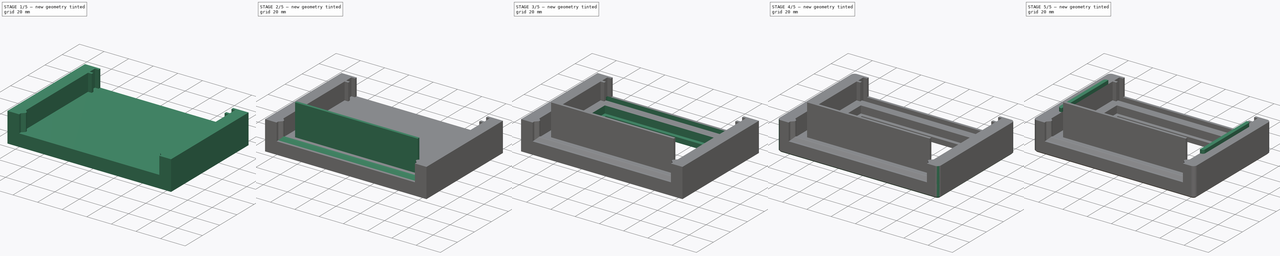
[diagram: build sequence overview — one tinted view per stage of 5, left to right]
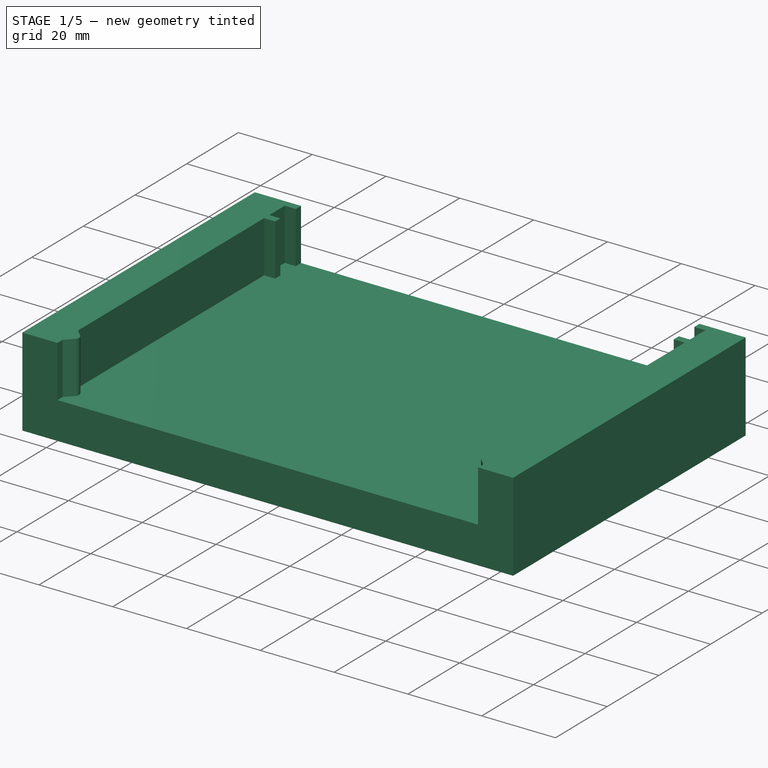
[diagram: stage 1 of 5 — iso view after this stage's code; geometry added in this stage tinted green]
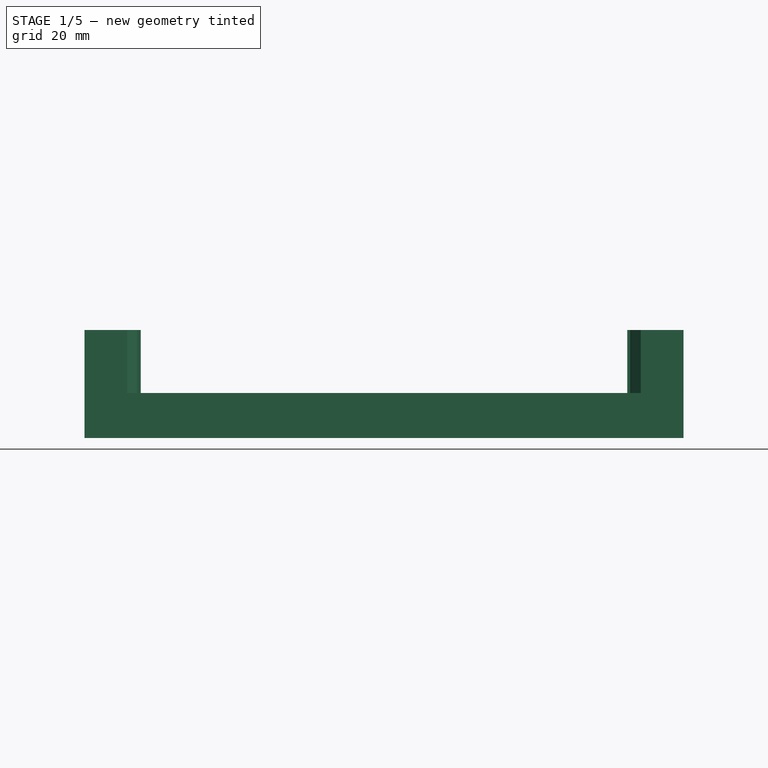
[diagram: stage 1 of 5 — front view after this stage's code; geometry added in this stage tinted green]
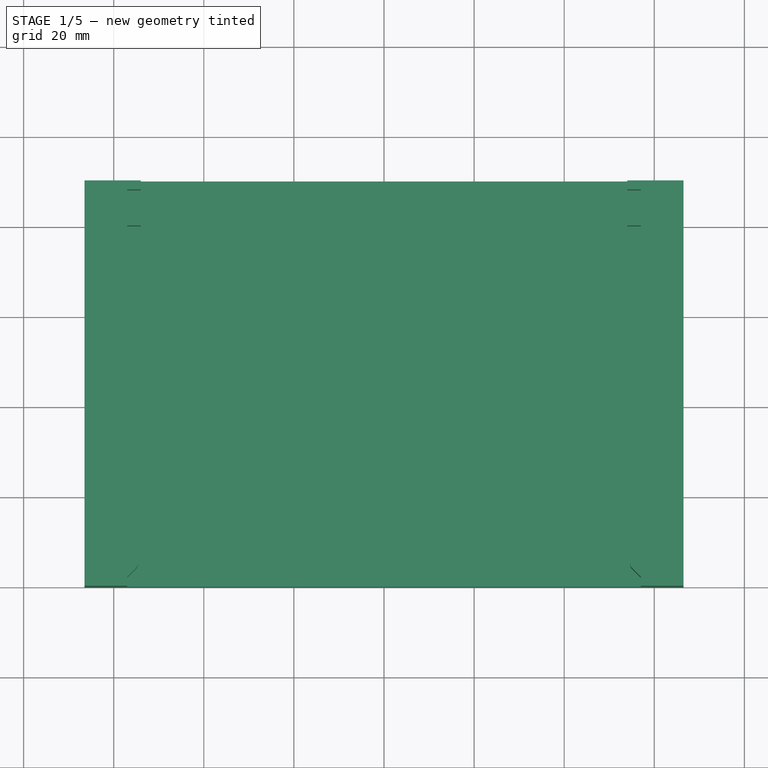
[diagram: stage 1 of 5 — top view after this stage's code; geometry added in this stage tinted green]
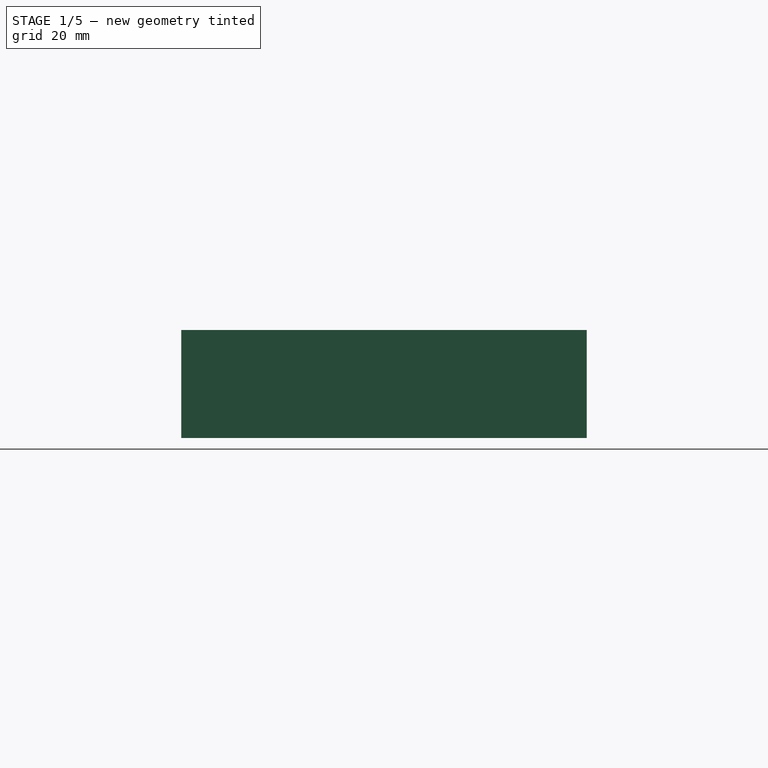
[diagram: stage 1 of 5 — right view after this stage's code; geometry added in this stage tinted green]
FCSTD DOCUMENT  (FreeCAD 0.17R13541 (Git))
Label: BikeBase4
License: All rights reserved
LicenseURL: http://en.wikipedia.org/wiki/All_rights_reserved
objects: Sketcher::SketchObject×9, PartDesign::Pad×6, PartDesign::Fillet×4, PartDesign::Pocket×3, PartDesign::Mirrored×1, PartDesign::LinearPattern×1, PartDesign::Chamfer×1, PartDesign::Body×1
note: 35 computed .brp shape members not serialized (recipe doc carries the construction recipe); baked Part::Feature solids carry a one-line shape summary decoded from their .brp

FEATURE [Sketcher::SketchObject] Sketch
  MapMode = 5
  Support = -> [XY_Plane]
  sketch-geometry (4):
    g0: LineSegment StartX=-66.5 StartY=-40 StartZ=0 EndX=66.5 EndY=-40 EndZ=0
    g1: LineSegment StartX=66.5 StartY=-40 StartZ=0 EndX=66.5 EndY=50 EndZ=0
    g2: LineSegment StartX=66.5 StartY=50 StartZ=0 EndX=-66.5 EndY=50 EndZ=0
    g3: LineSegment StartX=-66.5 StartY=50 StartZ=0 EndX=-66.5 EndY=-40 EndZ=0
  constraints (12):
    c: Coincident(g0,g1)
    c: Coincident(g1,g2)
    c: Coincident(g2,g3)
    c: Coincident(g3,g0)
    c: Horizontal(g0)
    c: Horizontal(g2)
    c: Vertical(g1)
    c: Vertical(g3)
    c: DistanceX(g0,g0) = 133
    c: DistanceX(g-1,g0) = 66.5
    c: DistanceY(g0,g-1) = 40
    c: DistanceY(g-1,g1) = 50
FEATURE [PartDesign::Pad] Pad
  Length = 10
  Length2 = 100
  Profile = -> Sketch
  Type = 0
FEATURE [Sketcher::SketchObject] Sketch001
  ExternalGeometry = -> [Pad]
  MapMode = 5
  Support = -> [XY_Plane]
  sketch-geometry (14):
    g0: LineSegment StartX=-66.5 StartY=-40 StartZ=0 EndX=-66.5 EndY=50 EndZ=0
    g1: LineSegment StartX=-66.5 StartY=50 StartZ=0 EndX=-54 EndY=50 EndZ=0
    g2: LineSegment StartX=-54 StartY=50 StartZ=0 EndX=-54 EndY=48 EndZ=0
    g3: LineSegment StartX=-54 StartY=48 StartZ=0 EndX=-57 EndY=48 EndZ=0
    g4: LineSegment StartX=-57 StartY=48 StartZ=0 EndX=-57 EndY=42 EndZ=0
    g5: LineSegment StartX=-57 StartY=42 StartZ=0 EndX=-54 EndY=42 EndZ=0
    g6: LineSegment StartX=-54 StartY=42 StartZ=0 EndX=-54 EndY=40 EndZ=0
    g7: LineSegment StartX=-54 StartY=40 StartZ=0 EndX=-57 EndY=40 EndZ=0
    g8: LineSegment StartX=-57 StartY=40 StartZ=0 EndX=-57 EndY=-32 EndZ=0
    g9: LineSegment StartX=-57 StartY=-32 StartZ=0 EndX=-55.0607 EndY=-33.9393 EndZ=0
    g10: LineSegment StartX=-55.0607 StartY=-36.0607 StartZ=0 EndX=-57 EndY=-38 EndZ=0
    g11: LineSegment StartX=-57 StartY=-38 StartZ=0 EndX=-57 EndY=-40 EndZ=0
    g12: LineSegment StartX=-57 StartY=-40 StartZ=0 EndX=-66.5 EndY=-40 EndZ=0
    g13: ArcOfCircle CenterX=-56.1213 CenterY=-35 CenterZ=0 NormalX=0 NormalY=0 NormalZ=1 AngleXU=0 Radius=1.5 StartAngle=5.49779 EndAngle=7.06858
  constraints (39):
    c: Coincident(g0,g-3)
    c: Coincident(g0,g-3)
    c: Coincident(g1,g0)
    c: Horizontal(g1)
    c: Coincident(g2,g1)
    c: Vertical(g2)
    c: Coincident(g3,g2)
    c: Coincident(g4,g3)
    c: Vertical(g4)
    c: Coincident(g5,g4)
    c: Horizontal(g5)
    c: Coincident(g6,g5)
    c: Coincident(g7,g6)
    c: Horizontal(g7)
    c: Coincident(g8,g7)
    c: Vertical(g8)
    c: Coincident(g9,g8)
    c: Coincident(g12,g11)
    c: Coincident(g12,g0)
    c: Distance(g1) = 12.5
    c: Distance(g2) = 2
    c: Distance(g3) = 3
    c: Distance(g4) = 6
    c: Distance(g6) = 2
    c: Distance(g7) = 3
    c: Horizontal(g3)
    c: Distance(g5) = 3
    c: Vertical(g6)
    c: Coincident(g10,g11)
    c: Horizontal(g12)
    c: Vertical(g11)
    c: Angle(g11,g10) = 2.35619
    c: Perpendicular(g9,g10)
    c: DistanceX(g12,g12) = 9.5
    c: Distance(g11) = 2
    c: DistanceY(g10,g8) = 6
    c: Tangent(g9,g13) = 1.5708
    c: Tangent(g10,g13) = 1.5708
    c: Radius(g13) = 1.5
FEATURE [PartDesign::Pad] Pad001
  BaseFeature = -> Pad
  Length = 24
  Length2 = 100
  Profile = -> Sketch001
  Type = 0
FEATURE [PartDesign::Mirrored] Mirrored
  BaseFeature = -> Pad001
  MirrorPlane = -> Sketch001 [V_Axis]
  Originals = -> [Pad001]
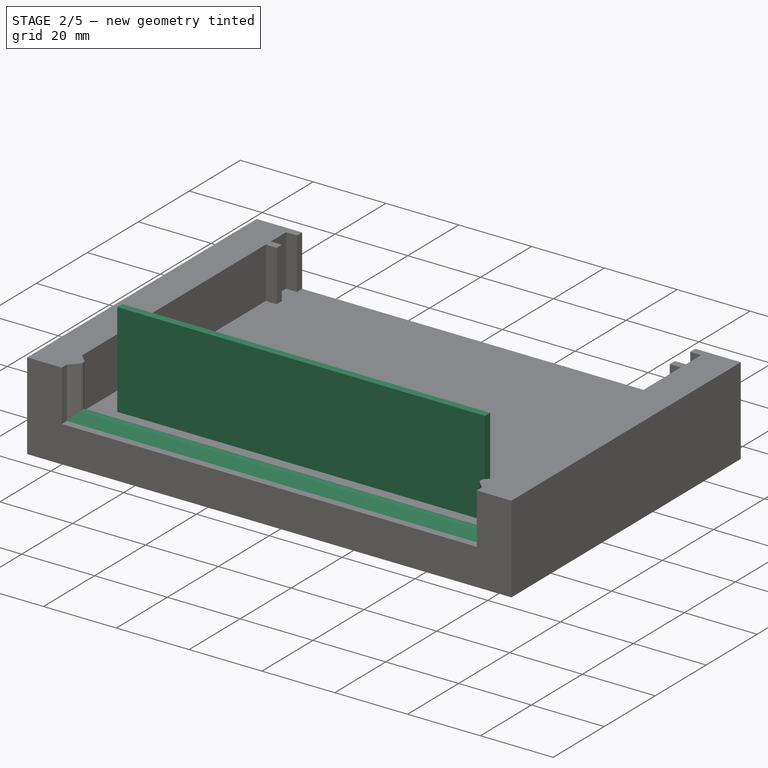
[diagram: stage 2 of 5 — iso view after this stage's code; geometry added in this stage tinted green]
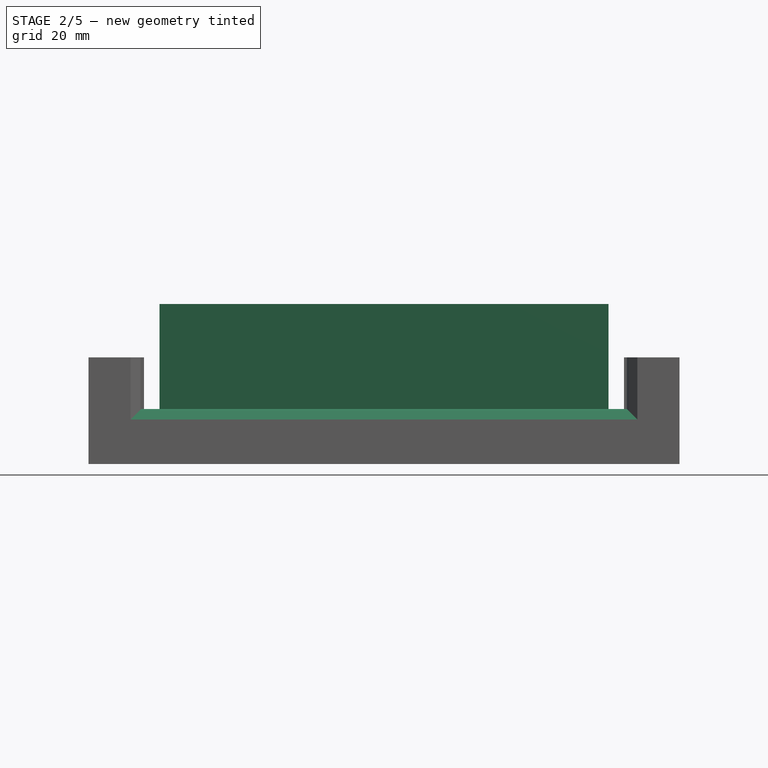
[diagram: stage 2 of 5 — front view after this stage's code; geometry added in this stage tinted green]
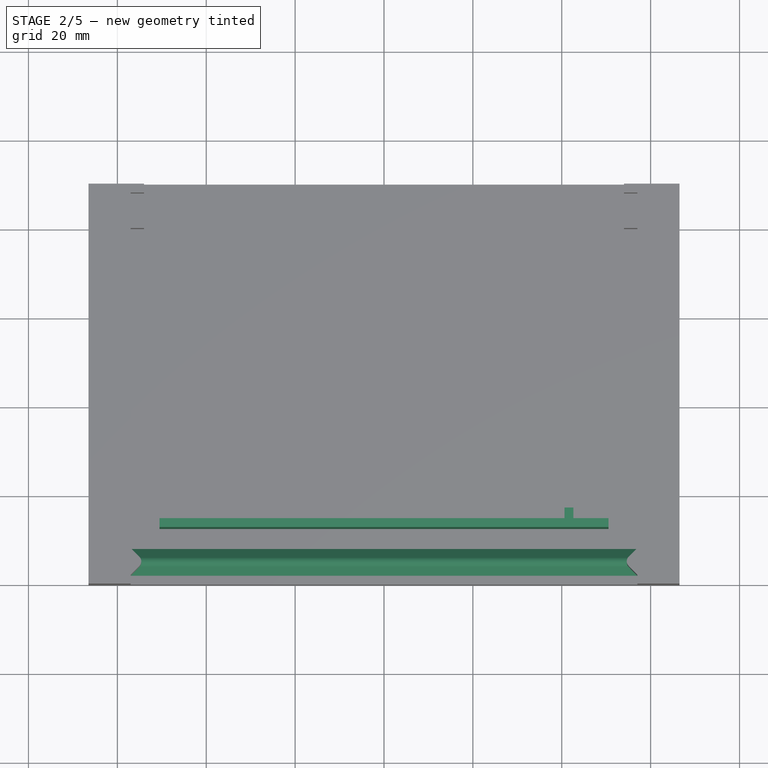
[diagram: stage 2 of 5 — top view after this stage's code; geometry added in this stage tinted green]
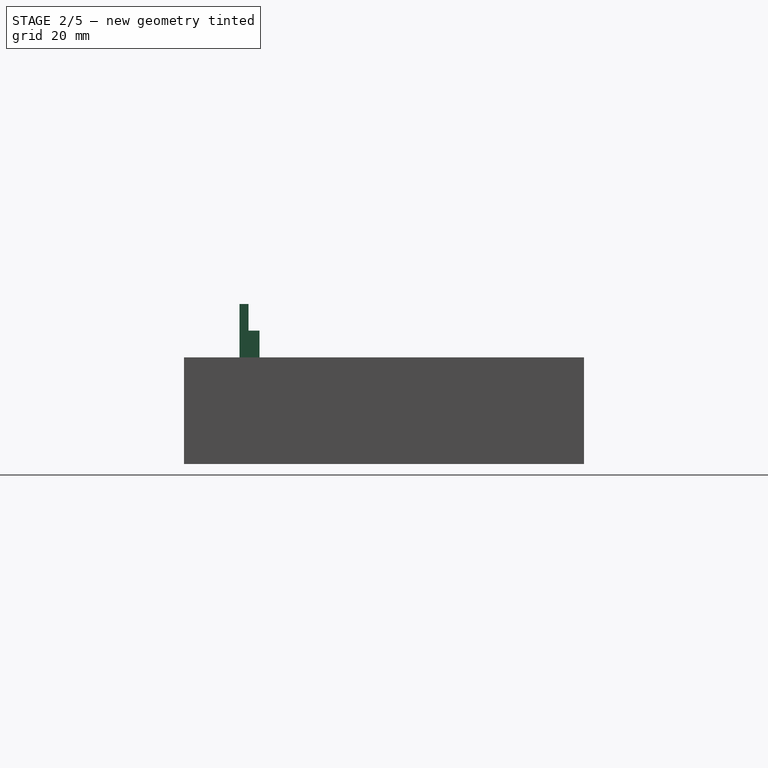
[diagram: stage 2 of 5 — right view after this stage's code; geometry added in this stage tinted green]
FEATURE [Sketcher::SketchObject] Sketch002
  ExternalGeometry = -> [Mirrored]
  MapMode = 5
  Placement = pos=(-66.5,0,0) rot=(0.57735,-0.57735,-0.57735;2.0944rad)
  Support = -> [Mirrored]
  sketch-geometry (4):
    g0: LineSegment StartX=32 StartY=10 StartZ=0 EndX=33.9393 EndY=11.9393 EndZ=0
    g1: LineSegment StartX=36.0607 StartY=11.9393 StartZ=0 EndX=38 EndY=10 EndZ=0
    g2: LineSegment StartX=38 StartY=10 StartZ=0 EndX=32 EndY=10 EndZ=0
    g3: ArcOfCircle CenterX=35 CenterY=10.8787 CenterZ=0 NormalX=0 NormalY=0 NormalZ=1 AngleXU=0 Radius=1.5 StartAngle=0.785398 EndAngle=2.35619
  constraints (11):
    c: Coincident(g2,g1)
    c: Coincident(g2,g0)
    c: Horizontal(g2)
    c: DistanceY(g0) = 10
    c: DistanceX(g1,g-3) = 2
    c: DistanceX(g0,g1) = 6
    c: Angle(g2,g0) = 0.785398
    c: Angle(g1,g2) = 0.785398
    c: Tangent(g0,g3) = 1.5708
    c: Tangent(g1,g3) = 1.5708
    c: Radius(g3) = 1.5
FEATURE [PartDesign::Pad] Pad002
  BaseFeature = -> Mirrored
  Length = 133
  Length2 = 100
  Profile = -> Sketch002
  Reversed = true
  Type = 0
FEATURE [Sketcher::SketchObject] Sketch003
  MapMode = 5
  Support = -> [XY_Plane]
  sketch-geometry (4):
    g0: LineSegment StartX=-50.5 StartY=-25.5 StartZ=0 EndX=50.5 EndY=-25.5 EndZ=0
    g1: LineSegment StartX=50.5 StartY=-25.5 StartZ=0 EndX=50.5 EndY=-27.5 EndZ=0
    g2: LineSegment StartX=50.5 StartY=-27.5 StartZ=0 EndX=-50.5 EndY=-27.5 EndZ=0
    g3: LineSegment StartX=-50.5 StartY=-27.5 StartZ=0 EndX=-50.5 EndY=-25.5 EndZ=0
  constraints (12):
    c: Coincident(g0,g1)
    c: Coincident(g1,g2)
    c: Coincident(g2,g3)
    c: Coincident(g3,g0)
    c: Horizontal(g0)
    c: Horizontal(g2)
    c: Vertical(g1)
    c: Vertical(g3)
    c: DistanceX(g1,g-1) = -50.5
    c: DistanceY(g1,g-1) = 27.5
    c: DistanceY(g3,g3) = 2
    c: DistanceX(g2,g-1) = 50.5
FEATURE [PartDesign::Pad] Pad003
  BaseFeature = -> Pad002
  Length = 36
  Length2 = 100
  Profile = -> Sketch003
  Type = 0
FEATURE [Sketcher::SketchObject] Sketch004
  MapMode = 5
  Support = -> [XY_Plane]
  sketch-geometry (4):
    g0: LineSegment StartX=42.6 StartY=-26 StartZ=0 EndX=40.6 EndY=-26 EndZ=0
    g1: LineSegment StartX=40.6 StartY=-26 StartZ=0 EndX=40.6 EndY=-23 EndZ=0
    g2: LineSegment StartX=40.6 StartY=-23 StartZ=0 EndX=42.6 EndY=-23 EndZ=0
    g3: LineSegment StartX=42.6 StartY=-23 StartZ=0 EndX=42.6 EndY=-26 EndZ=0
  constraints (12):
    c: Coincident(g0,g1)
    c: Coincident(g1,g2)
    c: Coincident(g2,g3)
    c: Coincident(g3,g0)
    c: Horizontal(g0)
    c: Horizontal(g2)
    c: Vertical(g1)
    c: Vertical(g3)
    c: DistanceY(g0,g-1) = 26
    c: DistanceX(g-1,g0) = 42.6
    c: DistanceX(g2,g2) = 2
    c: DistanceY(g1,g1) = 3
FEATURE [PartDesign::Pad] Pad004
  BaseFeature = -> Pad003
  Length = 30
  Length2 = 100
  Profile = -> Sketch004
  Type = 0
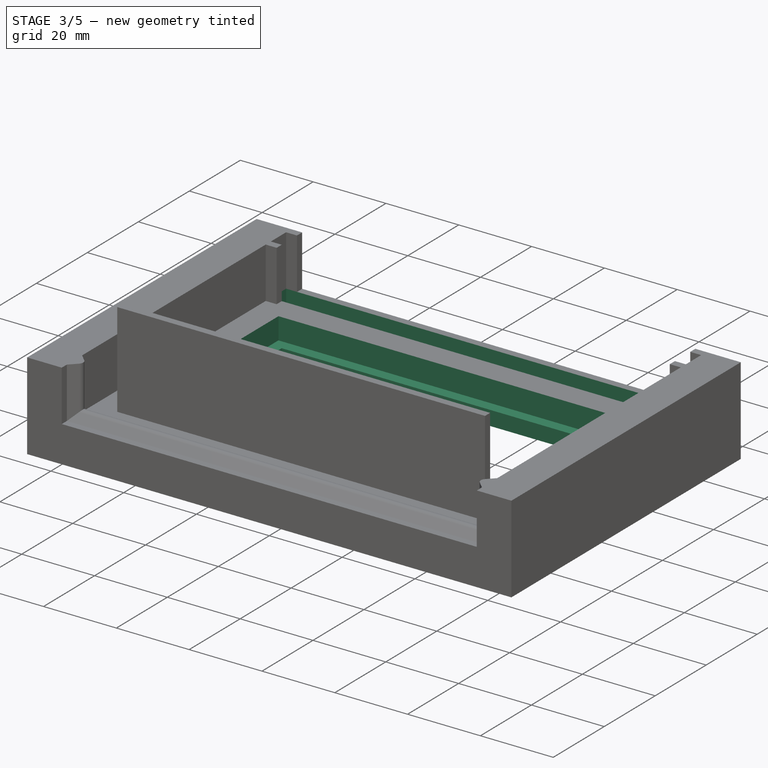
[diagram: stage 3 of 5 — iso view after this stage's code; geometry added in this stage tinted green]
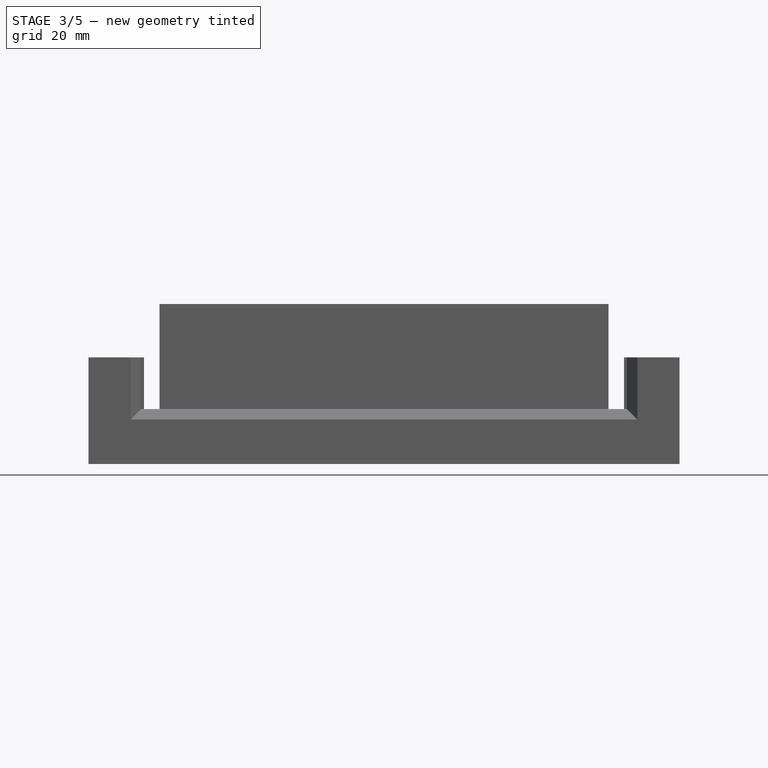
[diagram: stage 3 of 5 — front view after this stage's code; geometry added in this stage tinted green]
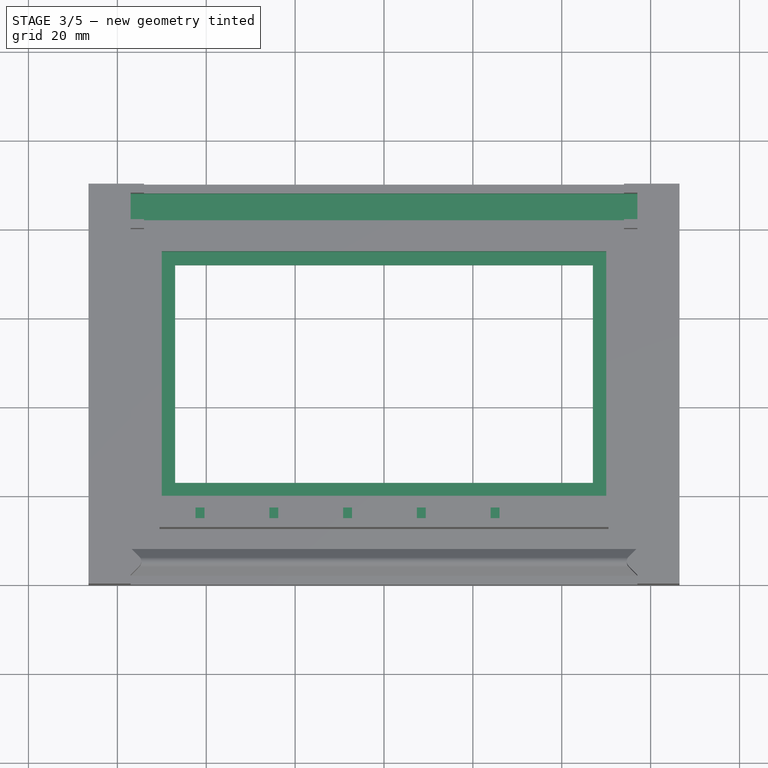
[diagram: stage 3 of 5 — top view after this stage's code; geometry added in this stage tinted green]
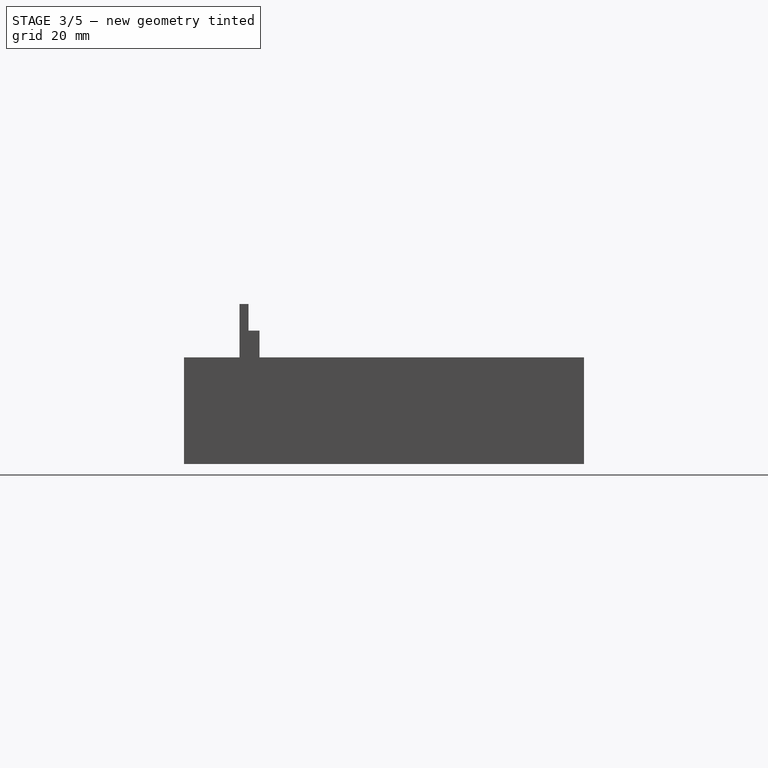
[diagram: stage 3 of 5 — right view after this stage's code; geometry added in this stage tinted green]
FEATURE [PartDesign::LinearPattern] LinearPattern
  BaseFeature = -> Pad004
  Direction = -> Sketch004 [H_Axis]
  Length = 83
  Occurrences = 6
  Originals = -> [Pad004]
  Reversed = true
FEATURE [Sketcher::SketchObject] Sketch005
  MapMode = 5
  Placement = pos=(0,0,10) rot=(0,0,1;0rad)
  Support = -> [LinearPattern]
  sketch-geometry (4):
    g0: LineSegment StartX=-50 StartY=-20 StartZ=0 EndX=50 EndY=-20 EndZ=0
    g1: LineSegment StartX=50 StartY=-20 StartZ=0 EndX=50 EndY=35 EndZ=0
    g2: LineSegment StartX=50 StartY=35 StartZ=0 EndX=-50 EndY=35 EndZ=0
    g3: LineSegment StartX=-50 StartY=35 StartZ=0 EndX=-50 EndY=-20 EndZ=0
  constraints (12):
    c: Coincident(g0,g1)
    c: Coincident(g1,g2)
    c: Coincident(g2,g3)
    c: Coincident(g3,g0)
    c: Horizontal(g0)
    c: Horizontal(g2)
    c: Vertical(g1)
    c: Vertical(g3)
    c: DistanceX(g0) = 50
    c: DistanceY(g0) = -20
    c: DistanceX(g0,g-1) = 50
    c: DistanceY(g-1,g1) = 35
FEATURE [PartDesign::Pocket] Pocket
  BaseFeature = -> LinearPattern
  Length = 6
  Length2 = 100
  Profile = -> Sketch005
  Type = 0
FEATURE [Sketcher::SketchObject] Sketch006
  MapMode = 5
  Support = -> [XY_Plane]
  sketch-geometry (4):
    g0: LineSegment StartX=-47 StartY=32 StartZ=0 EndX=47 EndY=32 EndZ=0
    g1: LineSegment StartX=47 StartY=32 StartZ=0 EndX=47 EndY=-17 EndZ=0
    g2: LineSegment StartX=47 StartY=-17 StartZ=0 EndX=-47 EndY=-17 EndZ=0
    g3: LineSegment StartX=-47 StartY=-17 StartZ=0 EndX=-47 EndY=32 EndZ=0
  constraints (12):
    c: Coincident(g0,g1)
    c: Coincident(g1,g2)
    c: Coincident(g2,g3)
    c: Coincident(g3,g0)
    c: Horizontal(g0)
    c: Horizontal(g2)
    c: Vertical(g1)
    c: Vertical(g3)
    c: DistanceX(g1) = 47
    c: DistanceY(g1) = -17
    c: DistanceX(g2,g-1) = 47
    c: DistanceY(g-1,g0) = 32
FEATURE [PartDesign::Pocket] Pocket001
  BaseFeature = -> Pocket
  Length = 5
  Length2 = 100
  Profile = -> Sketch006
  Reversed = true
  Type = 1
FEATURE [Sketcher::SketchObject] Sketch007
  MapMode = 5
  Placement = pos=(0,0,0) rot=(0.57735,0.57735,0.57735;2.0944rad)
  Support = -> [YZ_Plane]
  sketch-geometry (4):
    g0: LineSegment StartX=42 StartY=11 StartZ=0 EndX=48 EndY=11 EndZ=0
    g1: LineSegment StartX=48 StartY=11 StartZ=0 EndX=48 EndY=5 EndZ=0
    g2: LineSegment StartX=48 StartY=5 StartZ=0 EndX=42 EndY=5 EndZ=0
    g3: LineSegment StartX=42 StartY=5 StartZ=0 EndX=42 EndY=11 EndZ=0
  constraints (12):
    c: Coincident(g0,g1)
    c: Coincident(g1,g2)
    c: Coincident(g2,g3)
    c: Coincident(g3,g0)
    c: Horizontal(g0)
    c: Horizontal(g2)
    c: Vertical(g1)
    c: Vertical(g3)
    c: DistanceX(g0) = 48
    c: DistanceY(g0) = 11
    c: DistanceY(g1,g1) = 6
    c: DistanceX(g2,g2) = 6
FEATURE [PartDesign::Pocket] Pocket002
  BaseFeature = -> Pocket001
  Length = 57
  Length2 = 57
  Profile = -> Sketch007
  Type = 4
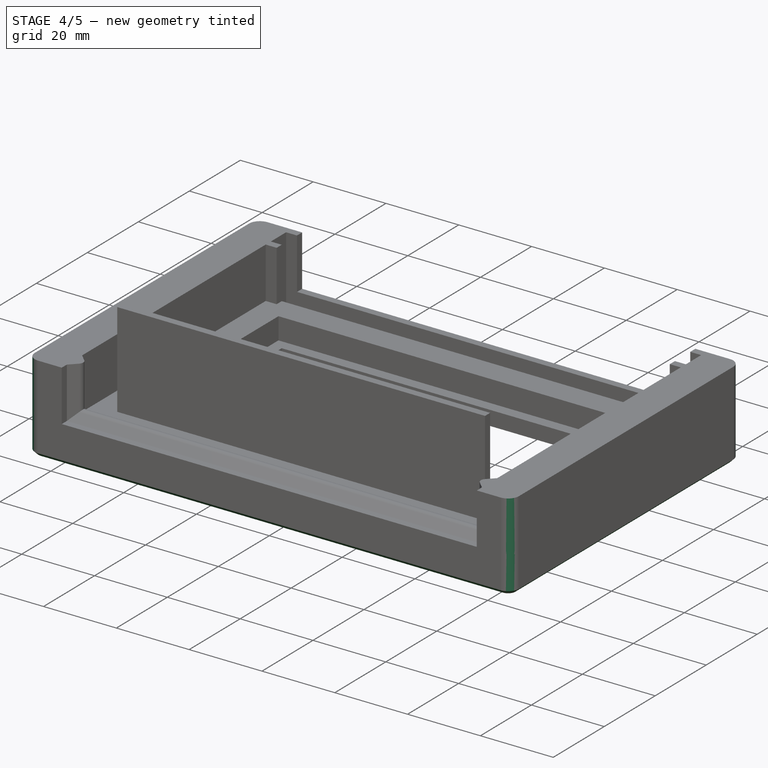
[diagram: stage 4 of 5 — iso view after this stage's code; geometry added in this stage tinted green]
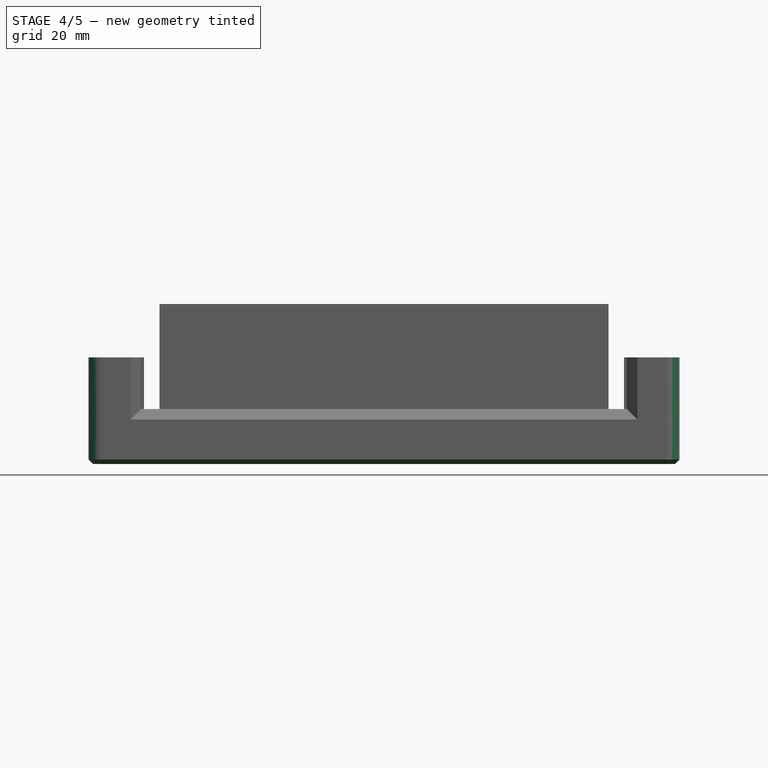
[diagram: stage 4 of 5 — front view after this stage's code; geometry added in this stage tinted green]
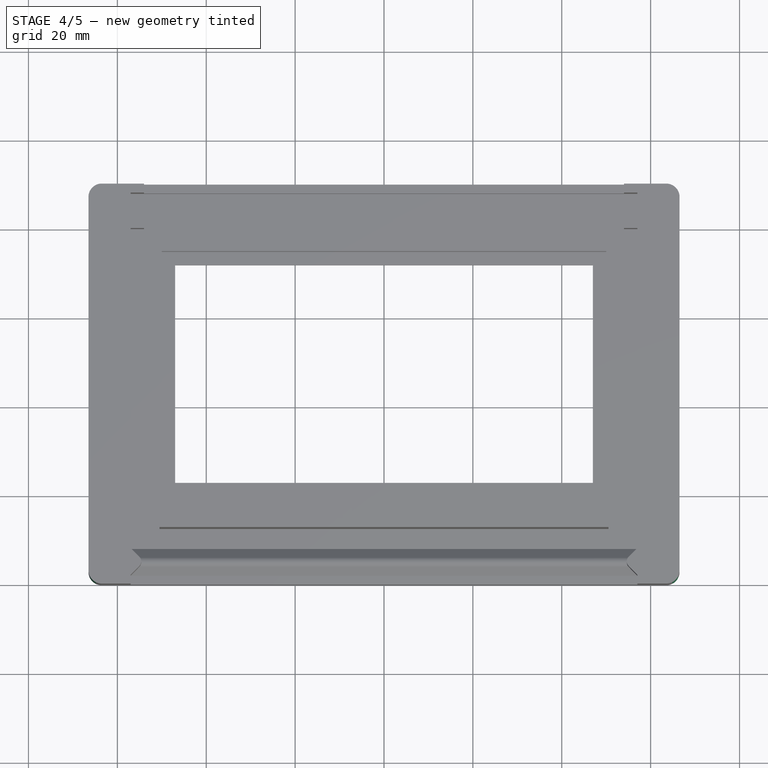
[diagram: stage 4 of 5 — top view after this stage's code; geometry added in this stage tinted green]
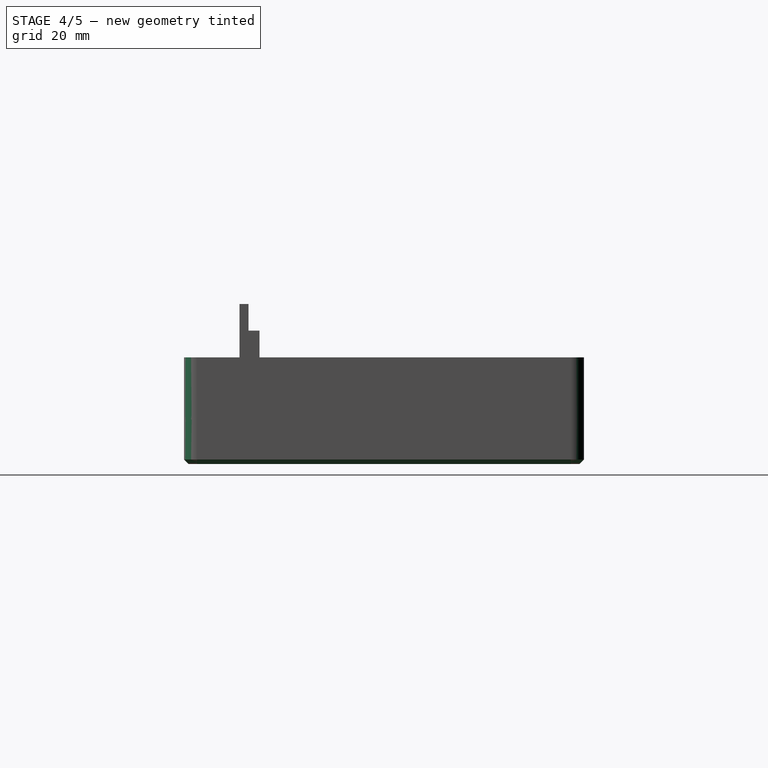
[diagram: stage 4 of 5 — right view after this stage's code; geometry added in this stage tinted green]
FEATURE [PartDesign::Fillet] Fillet
  Base = -> Pocket002 [Edge21,Edge4,Edge80,Edge24]
  BaseFeature = -> Pocket002
  Radius = 3
FEATURE [PartDesign::Fillet] Fillet001
  Base = -> Fillet [Edge189,Edge147,Edge151,Edge83]
  BaseFeature = -> Fillet
  Radius = 3
FEATURE [PartDesign::Chamfer] Chamfer
  Base = -> Fillet001 [Edge8,Edge6,Edge5,Edge45,Edge113,Edge111,Edge110,Edge112,Edge85,Edge22,Edge1,Edge10]
  BaseFeature = -> Fillet001
  Size = 1
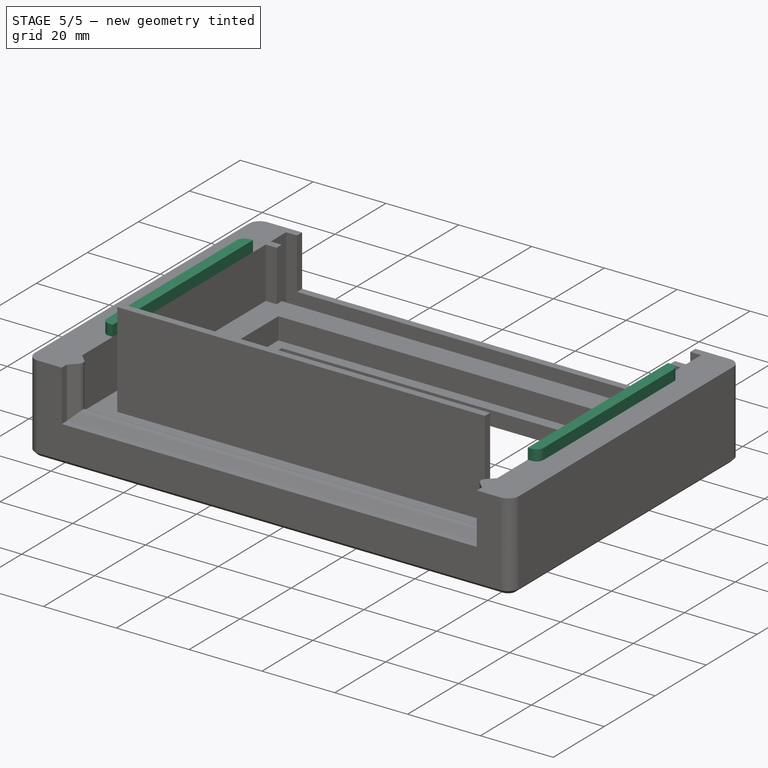
[diagram: stage 5 of 5 — iso view after this stage's code; geometry added in this stage tinted green]
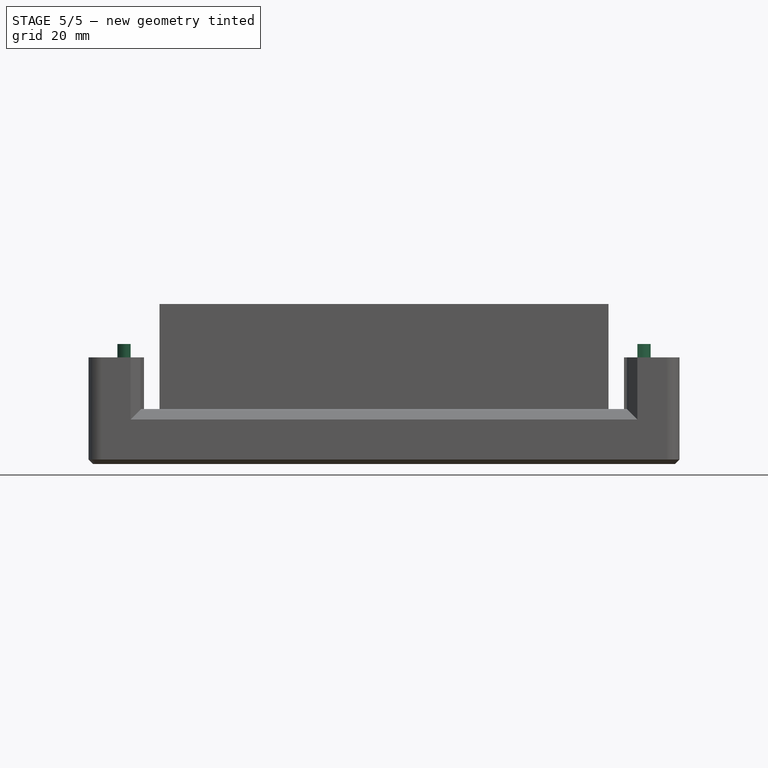
[diagram: stage 5 of 5 — front view after this stage's code; geometry added in this stage tinted green]
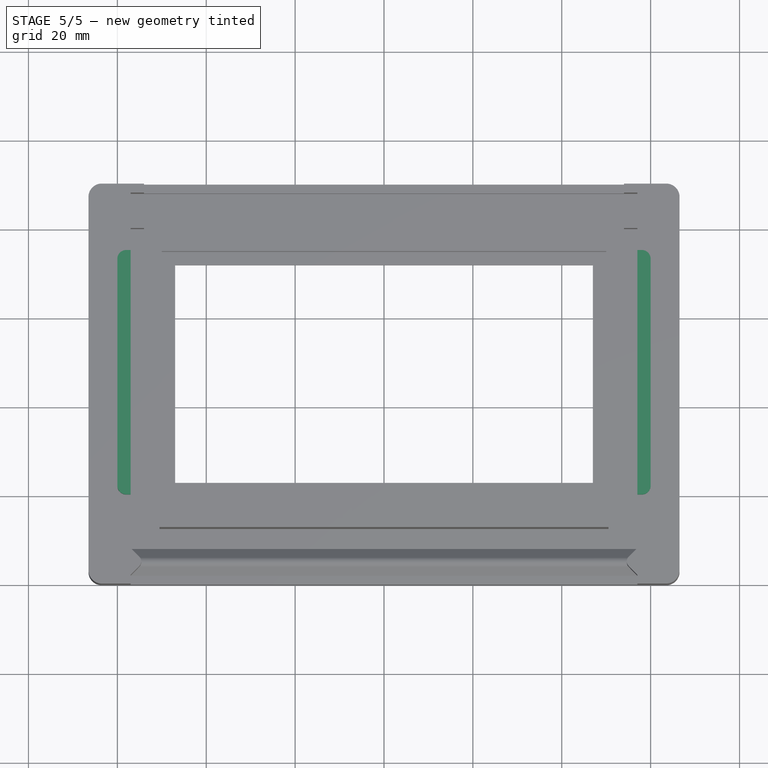
[diagram: stage 5 of 5 — top view after this stage's code; geometry added in this stage tinted green]
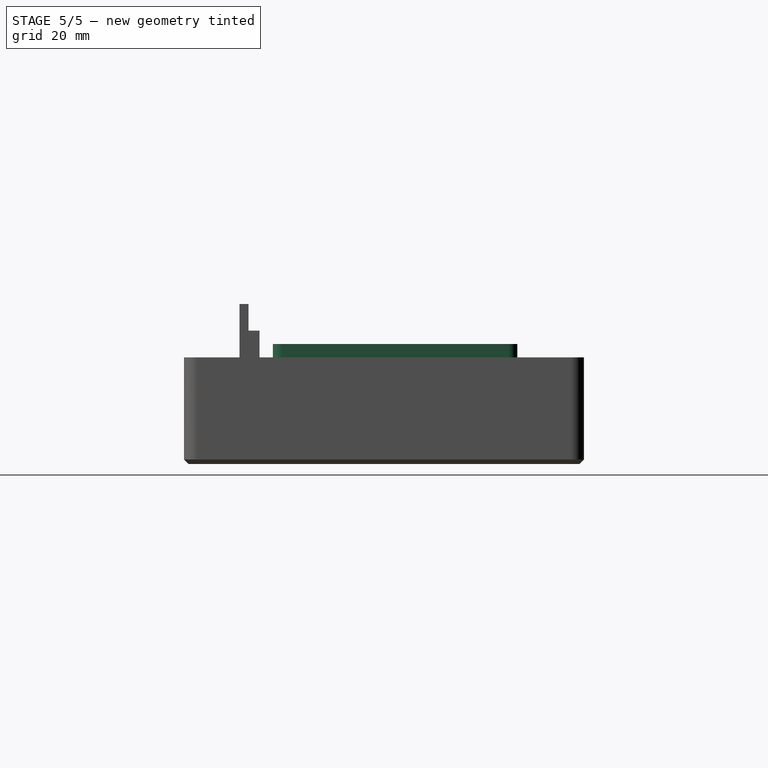
[diagram: stage 5 of 5 — right view after this stage's code; geometry added in this stage tinted green]
FEATURE [Sketcher::SketchObject] Sketch008
  MapMode = 5
  Placement = pos=(0,0,24) rot=(0,0,1;0rad)
  Support = -> [Chamfer]
  sketch-geometry (8):
    g0: LineSegment StartX=57 StartY=35 StartZ=0 EndX=60 EndY=35 EndZ=0
    g1: LineSegment StartX=60 StartY=35 StartZ=0 EndX=60 EndY=-20 EndZ=0
    g2: LineSegment StartX=60 StartY=-20 StartZ=0 EndX=57 EndY=-20 EndZ=0
    g3: LineSegment StartX=57 StartY=-20 StartZ=0 EndX=57 EndY=35 EndZ=0
    g4: LineSegment StartX=-57 StartY=35 StartZ=0 EndX=-60 EndY=35 EndZ=0
    g5: LineSegment StartX=-60 StartY=35 StartZ=0 EndX=-60 EndY=-20 EndZ=0
    g6: LineSegment StartX=-60 StartY=-20 StartZ=0 EndX=-57 EndY=-20 EndZ=0
    g7: LineSegment StartX=-57 StartY=-20 StartZ=0 EndX=-57 EndY=35 EndZ=0
  constraints (24):
    c: Coincident(g0,g1)
    c: Coincident(g1,g2)
    c: Coincident(g2,g3)
    c: Coincident(g3,g0)
    c: Horizontal(g0)
    c: Horizontal(g2)
    c: Vertical(g1)
    c: Vertical(g3)
    c: Coincident(g4,g5)
    c: Coincident(g5,g6)
    c: Coincident(g6,g7)
    c: Coincident(g7,g4)
    c: Horizontal(g4)
    c: Horizontal(g6)
    c: Vertical(g5)
    c: Vertical(g7)
    c: DistanceX(g2) = 57
    c: DistanceY(g2) = -20
    c: DistanceX(g6) = -57
    c: DistanceY(g6) = -20
    c: DistanceX(g0,g0) = 3
    c: DistanceX(g4,g4) = 3
    c: DistanceY(g1,g1) = 55
    c: DistanceY(g5,g5) = 55
FEATURE [PartDesign::Pad] Pad005
  BaseFeature = -> Chamfer
  Length = 3
  Length2 = 100
  Profile = -> Sketch008
  Type = 0
FEATURE [PartDesign::Fillet] Fillet002
  Base = -> Pad005 [Edge135,Edge138]
  BaseFeature = -> Pad005
  Radius = 2
FEATURE [PartDesign::Fillet] Fillet003
  Base = -> Fillet002 [Edge301,Edge303]
  BaseFeature = -> Fillet002
  Radius = 2
FEATURE [PartDesign::Body] Body
  Group = -> [Sketch,Pad,Sketch001,Pad001,Mirrored,Sketch002,Pad002,Sketch003,Pad003,Sketch004,Pad004,LinearPattern,Sketch005,Pocket,Sketch006,Pocket001,Sketch007,Pocket002,Fillet,Fillet001,Chamfer,Sketch008,Pad005,Fillet002,Fillet003]
  Origin = -> Origin
  Tip = -> Fillet003
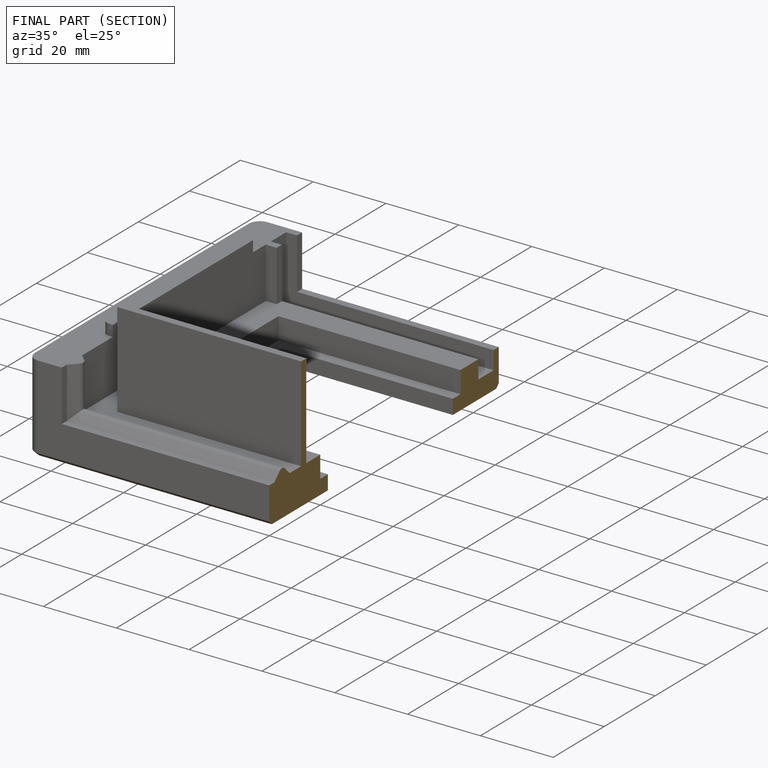
[diagram: finished part — half-section view (interior)]
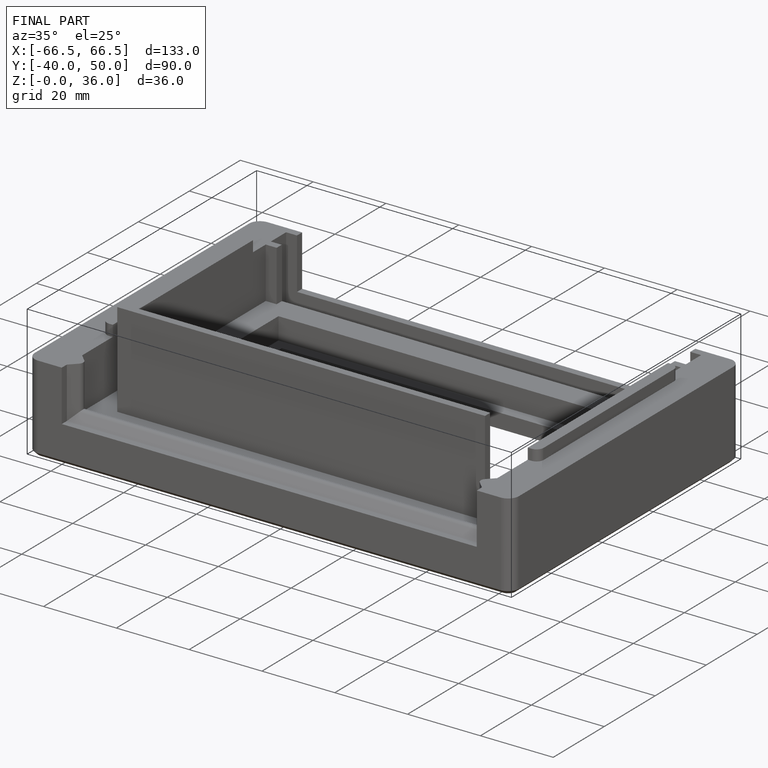
[diagram: finished part — iso view with bounding-box wireframe]
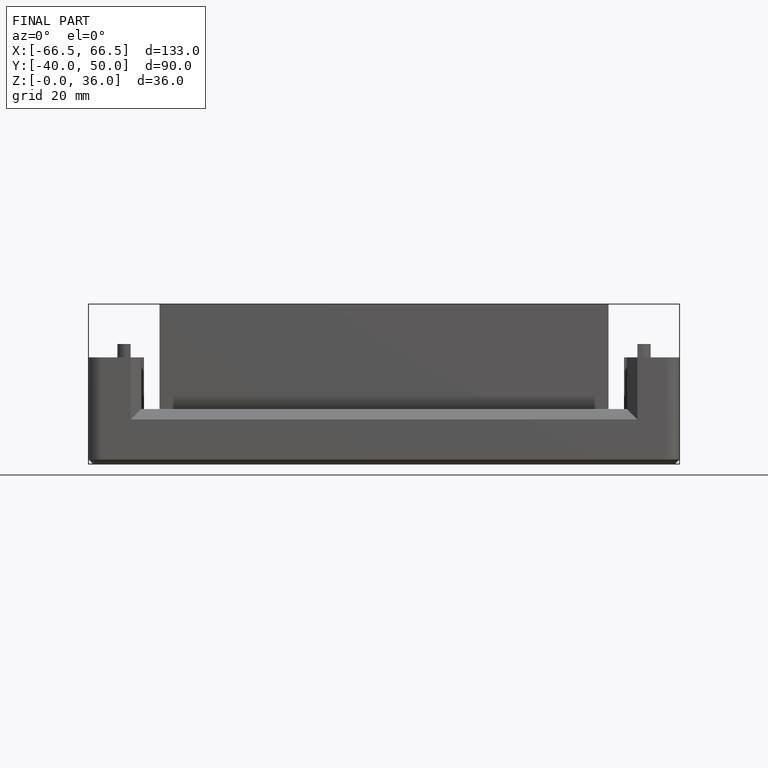
[diagram: finished part — front view with bounding-box wireframe]
